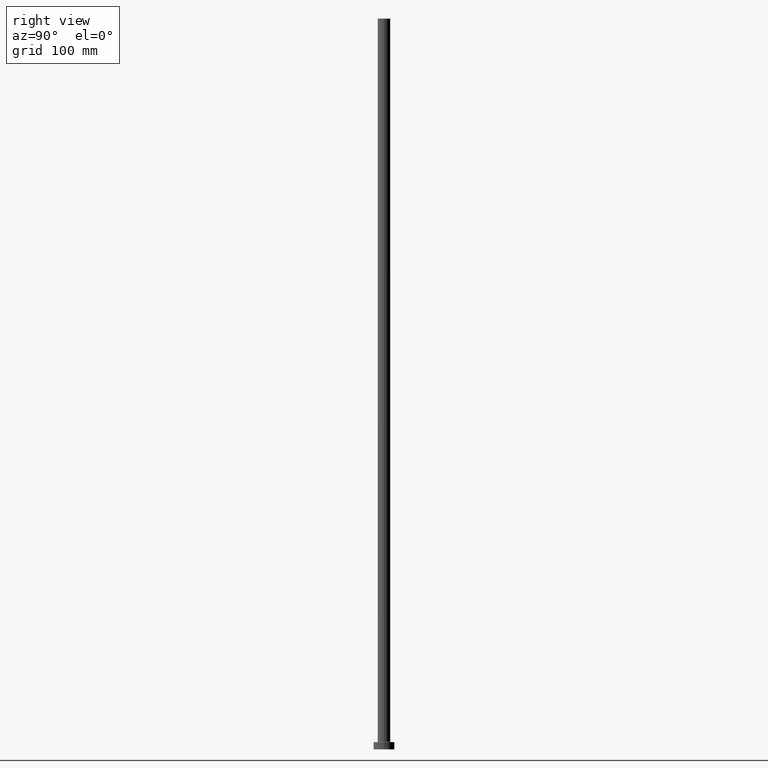
[diagram: clean part render]
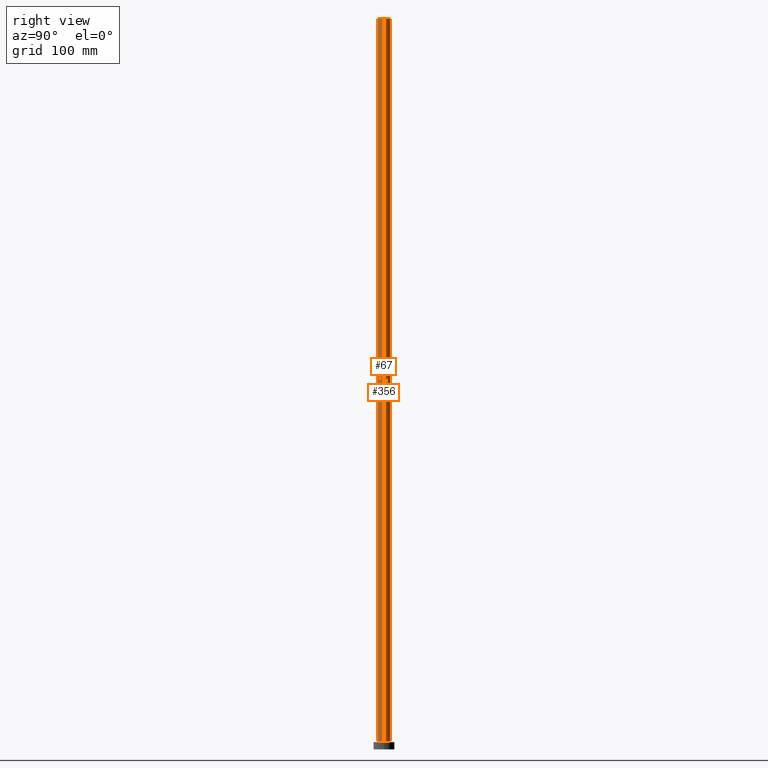
[diagram: same view with one multi-face feature highlighted, each face labeled with its STEP entity id]
A machine part, right view. The highlighted faces form ONE feature: a constant-radius fillet chain: 2 tangent blend faces with common blend radius 6 mm. The faces share edges in the B-rep.
Their STEP definitions:
[1] entity #356 (Cylinder):
#21 = CIRCLE ( 'NONE', #26, 6.000000000000000888 ) ;
#26 = AXIS2_PLACEMENT_3D ( 'NONE', #257, #289, #373 ) ;
#49 = VERTEX_POINT ( 'NONE', #100 ) ;
#60 = EDGE_CURVE ( 'NONE', #49, #271, #302, .T. ) ;
#66 = DIRECTION ( 'NONE',  ( -0.000000000000000000, -0.000000000000000000, -1.000000000000000000 ) ) ;
#98 = CARTESIAN_POINT ( 'NONE',  ( 0.000000000000000000, 0.000000000000000000, 700.0000000000000000 ) ) ;
#100 = CARTESIAN_POINT ( 'NONE',  ( 6.000000000000000888, 7.347880794884120722E-16, 700.0000000000000000 ) ) ;
#116 = VERTEX_POINT ( 'NONE', #353 ) ;
#124 = EDGE_CURVE ( 'NONE', #271, #165, #208, .T. ) ;
#128 = FACE_OUTER_BOUND ( 'NONE', #192, .T. ) ;
#133 = DIRECTION ( 'NONE',  ( -1.000000000000000000, 0.000000000000000000, 0.000000000000000000 ) ) ;
#165 = VERTEX_POINT ( 'NONE', #326 ) ;
#173 = DIRECTION ( 'NONE',  ( 1.000000000000000000, 0.000000000000000000, 0.000000000000000000 ) ) ;
#177 = AXIS2_PLACEMENT_3D ( 'NONE', #317, #217, #173 ) ;
#192 = EDGE_LOOP ( 'NONE', ( #236, #405, #333, #371 ) ) ;
#208 = LINE ( 'NONE', #216, #386 ) ;
#209 = EDGE_CURVE ( 'NONE', #116, #165, #21, .T. ) ;
#216 = CARTESIAN_POINT ( 'NONE',  ( -6.000000000000000888, 0.000000000000000000, 700.0000000000000000 ) ) ;
#217 = DIRECTION ( 'NONE',  ( 0.000000000000000000, 0.000000000000000000, 1.000000000000000000 ) ) ;
#236 = ORIENTED_EDGE ( 'NONE', *, *, #60, .F. ) ;
#256 = AXIS2_PLACEMENT_3D ( 'NONE', #98, #349, #133 ) ;
#257 = CARTESIAN_POINT ( 'NONE',  ( 0.000000000000000000, 0.000000000000000000, 7.499999999999951150 ) ) ;
#271 = VERTEX_POINT ( 'NONE', #338 ) ;
#272 = CYLINDRICAL_SURFACE ( 'NONE', #256, 6.000000000000000888 ) ;
#277 = VECTOR ( 'NONE', #299, 1000.000000000000000 ) ;
#289 = DIRECTION ( 'NONE',  ( 0.000000000000000000, 0.000000000000000000, 1.000000000000000000 ) ) ;
#299 = DIRECTION ( 'NONE',  ( -0.000000000000000000, -0.000000000000000000, -1.000000000000000000 ) ) ;
#302 = CIRCLE ( 'NONE', #177, 6.000000000000000888 ) ;
#317 = CARTESIAN_POINT ( 'NONE',  ( 0.000000000000000000, 0.000000000000000000, 700.0000000000000000 ) ) ;
#326 = CARTESIAN_POINT ( 'NONE',  ( -6.000000000000000888, 0.000000000000000000, 7.499999999999951150 ) ) ;
#333 = ORIENTED_EDGE ( 'NONE', *, *, #209, .T. ) ;
#338 = CARTESIAN_POINT ( 'NONE',  ( -6.000000000000000888, 0.000000000000000000, 700.0000000000000000 ) ) ;
#345 = LINE ( 'NONE', #455, #277 ) ;
#349 = DIRECTION ( 'NONE',  ( -0.000000000000000000, -0.000000000000000000, -1.000000000000000000 ) ) ;
#353 = CARTESIAN_POINT ( 'NONE',  ( 6.000000000000000888, 7.347880794884120722E-16, 7.499999999999951150 ) ) ;
#356 = ADVANCED_FACE ( 'NONE', ( #128 ), #272, .T. ) ;
#371 = ORIENTED_EDGE ( 'NONE', *, *, #124, .F. ) ;
#373 = DIRECTION ( 'NONE',  ( 1.000000000000000000, 0.000000000000000000, 0.000000000000000000 ) ) ;
#386 = VECTOR ( 'NONE', #66, 1000.000000000000000 ) ;
#398 = EDGE_CURVE ( 'NONE', #49, #116, #345, .T. ) ;
#405 = ORIENTED_EDGE ( 'NONE', *, *, #398, .T. ) ;
#455 = CARTESIAN_POINT ( 'NONE',  ( 6.000000000000000888, 7.347880794884120722E-16, 700.0000000000000000 ) ) ;
[2] entity #67 (Cylinder):
#16 = EDGE_LOOP ( 'NONE', ( #394, #213, #215, #180 ) ) ;
#36 = EDGE_CURVE ( 'NONE', #271, #49, #366, .T. ) ;
#48 = DIRECTION ( 'NONE',  ( 1.000000000000000000, 0.000000000000000000, 0.000000000000000000 ) ) ;
#49 = VERTEX_POINT ( 'NONE', #100 ) ;
#66 = DIRECTION ( 'NONE',  ( -0.000000000000000000, -0.000000000000000000, -1.000000000000000000 ) ) ;
#67 = ADVANCED_FACE ( 'NONE', ( #105 ), #245, .T. ) ;
#100 = CARTESIAN_POINT ( 'NONE',  ( 6.000000000000000888, 7.347880794884120722E-16, 700.0000000000000000 ) ) ;
#105 = FACE_OUTER_BOUND ( 'NONE', #16, .T. ) ;
#116 = VERTEX_POINT ( 'NONE', #353 ) ;
#117 = CARTESIAN_POINT ( 'NONE',  ( 0.000000000000000000, 0.000000000000000000, 7.499999999999951150 ) ) ;
#124 = EDGE_CURVE ( 'NONE', #271, #165, #208, .T. ) ;
#147 = EDGE_CURVE ( 'NONE', #165, #116, #254, .T. ) ;
#158 = AXIS2_PLACEMENT_3D ( 'NONE', #395, #428, #315 ) ;
#165 = VERTEX_POINT ( 'NONE', #326 ) ;
#180 = ORIENTED_EDGE ( 'NONE', *, *, #147, .T. ) ;
#208 = LINE ( 'NONE', #216, #386 ) ;
#212 = AXIS2_PLACEMENT_3D ( 'NONE', #117, #410, #48 ) ;
#213 = ORIENTED_EDGE ( 'NONE', *, *, #36, .F. ) ;
#215 = ORIENTED_EDGE ( 'NONE', *, *, #124, .T. ) ;
#216 = CARTESIAN_POINT ( 'NONE',  ( -6.000000000000000888, 0.000000000000000000, 700.0000000000000000 ) ) ;
#242 = DIRECTION ( 'NONE',  ( 0.000000000000000000, 0.000000000000000000, 1.000000000000000000 ) ) ;
#245 = CYLINDRICAL_SURFACE ( 'NONE', #158, 6.000000000000000888 ) ;
#254 = CIRCLE ( 'NONE', #212, 6.000000000000000888 ) ;
#271 = VERTEX_POINT ( 'NONE', #338 ) ;
#277 = VECTOR ( 'NONE', #299, 1000.000000000000000 ) ;
#299 = DIRECTION ( 'NONE',  ( -0.000000000000000000, -0.000000000000000000, -1.000000000000000000 ) ) ;
#315 = DIRECTION ( 'NONE',  ( -1.000000000000000000, 0.000000000000000000, 0.000000000000000000 ) ) ;
#326 = CARTESIAN_POINT ( 'NONE',  ( -6.000000000000000888, 0.000000000000000000, 7.499999999999951150 ) ) ;
#338 = CARTESIAN_POINT ( 'NONE',  ( -6.000000000000000888, 0.000000000000000000, 700.0000000000000000 ) ) ;
#345 = LINE ( 'NONE', #455, #277 ) ;
#353 = CARTESIAN_POINT ( 'NONE',  ( 6.000000000000000888, 7.347880794884120722E-16, 7.499999999999951150 ) ) ;
#366 = CIRCLE ( 'NONE', #416, 6.000000000000000888 ) ;
#386 = VECTOR ( 'NONE', #66, 1000.000000000000000 ) ;
#392 = DIRECTION ( 'NONE',  ( 1.000000000000000000, 0.000000000000000000, 0.000000000000000000 ) ) ;
#394 = ORIENTED_EDGE ( 'NONE', *, *, #398, .F. ) ;
#395 = CARTESIAN_POINT ( 'NONE',  ( 0.000000000000000000, 0.000000000000000000, 700.0000000000000000 ) ) ;
#398 = EDGE_CURVE ( 'NONE', #49, #116, #345, .T. ) ;
#410 = DIRECTION ( 'NONE',  ( 0.000000000000000000, 0.000000000000000000, 1.000000000000000000 ) ) ;
#416 = AXIS2_PLACEMENT_3D ( 'NONE', #460, #242, #392 ) ;
#428 = DIRECTION ( 'NONE',  ( -0.000000000000000000, -0.000000000000000000, -1.000000000000000000 ) ) ;
#455 = CARTESIAN_POINT ( 'NONE',  ( 6.000000000000000888, 7.347880794884120722E-16, 700.0000000000000000 ) ) ;
#460 = CARTESIAN_POINT ( 'NONE',  ( 0.000000000000000000, 0.000000000000000000, 700.0000000000000000 ) ) ;